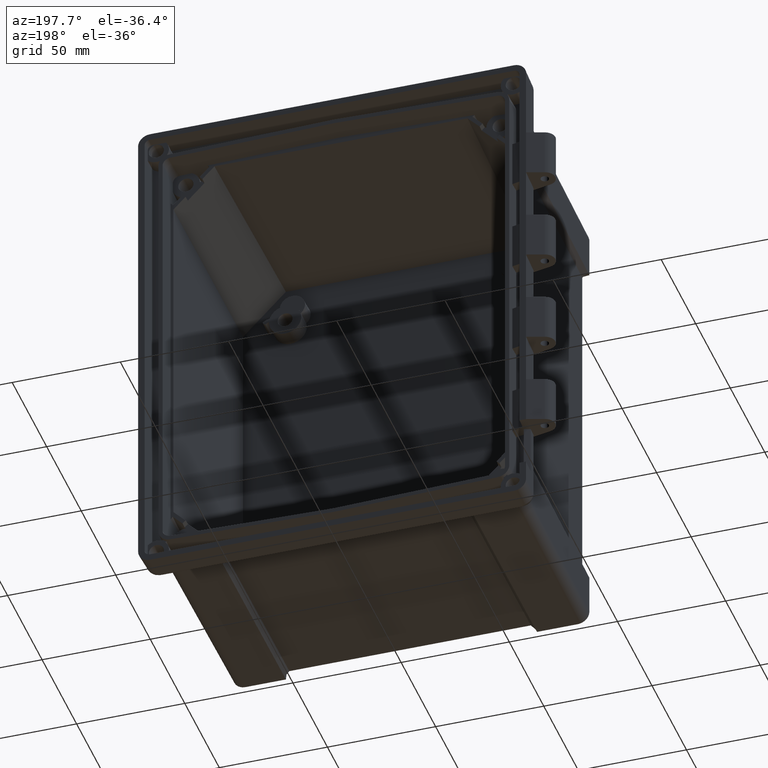
[diagram: clean part render]
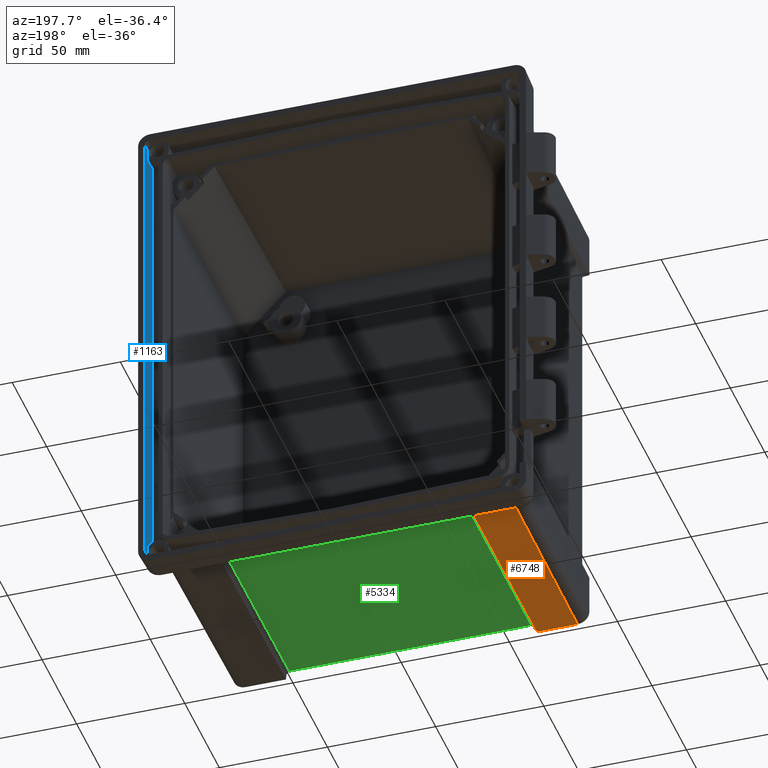
[diagram: same view with three faces highlighted in distinct colors, each labeled with its STEP entity id]
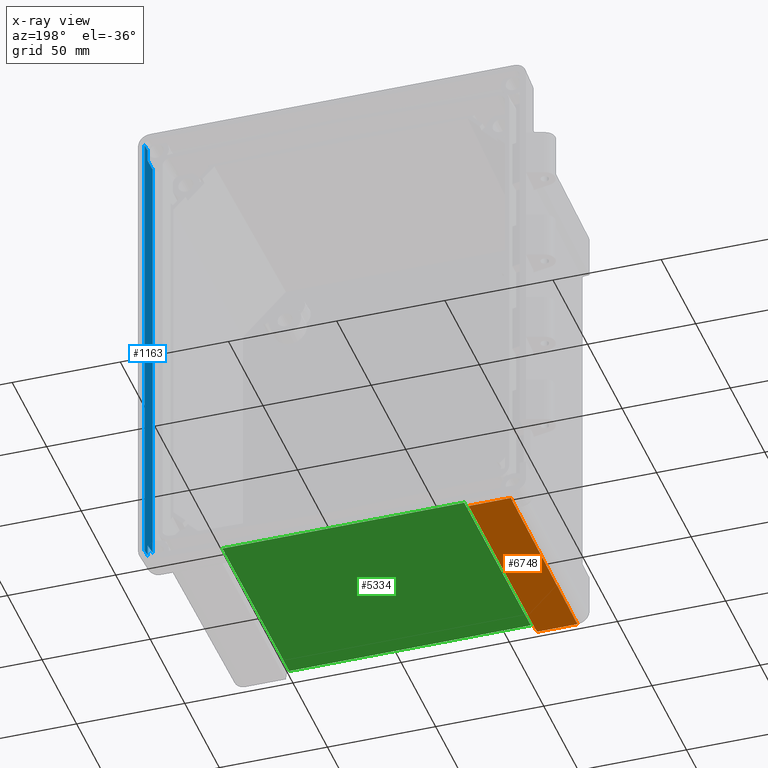
[diagram: x-ray of the same camera — body ghosted, the three highlighted faces saturated]
A machine part, auxiliary view with three faces highlighted in distinct colors.
The next image is the same camera in x-ray (body ghosted, the three faces saturated) — at least one of them is partly hidden behind the body in this view.
Their STEP definitions:

[orange] entity #6748 — the highlighted planar face has unit normal (0, -0.0087, -1).
#20 =( BOUNDED_CURVE ( )  B_SPLINE_CURVE ( 3, ( #15699, #1036, #7607, #13385 ),
 .UNSPECIFIED., .F., .F. ) 
 B_SPLINE_CURVE_WITH_KNOTS ( ( 4, 4 ),
 ( 1.823788115287226600, 1.877816546573069000 ),
 .UNSPECIFIED. ) 
 CURVE ( )  GEOMETRIC_REPRESENTATION_ITEM ( )  RATIONAL_B_SPLINE_CURVE ( ( 1.000000000000000000, 0.9997567588440701100, 0.9997567588440701100, 1.000000000000000000 ) ) 
 REPRESENTATION_ITEM ( '' )  );
#496 = ORIENTED_EDGE ( 'NONE', *, *, #1917, .T. ) ;
#757 = DIRECTION ( 'NONE',  ( -0.0009171954542809211400, 0.9999615024563481800, -0.008726531827785091400 ) ) ;
#941 = VERTEX_POINT ( 'NONE', #3738 ) ;
#1036 = CARTESIAN_POINT ( 'NONE',  ( -76.92441382525274200, -15.70021058996378500, -107.8462717140804200 ) ) ;
#1054 = ORIENTED_EDGE ( 'NONE', *, *, #12316, .T. ) ;
#1137 = DIRECTION ( 'NONE',  ( 0.007857165312980522700, 0.9999310562397356600, -0.008726266127677982700 ) ) ;
#1155 = PLANE ( 'NONE',  #1752 ) ;
#1752 = AXIS2_PLACEMENT_3D ( 'NONE', #10607, #6713, #16106 ) ;
#1773 = FACE_OUTER_BOUND ( 'NONE', #6966, .T. ) ;
#1917 = EDGE_CURVE ( 'NONE', #15261, #11117, #7010, .T. ) ;
#2273 = LINE ( 'NONE', #7884, #5867 ) ;
#2662 = LINE ( 'NONE', #8875, #6045 ) ;
#3738 = CARTESIAN_POINT ( 'NONE',  ( -58.10953762954192600, -15.71341567776966700, -107.8461564750249700 ) ) ;
#4180 = CARTESIAN_POINT ( 'NONE',  ( -76.72990500339598400, -115.0000000000000000, -106.9796955802488400 ) ) ;
#4183 = VERTEX_POINT ( 'NONE', #9734 ) ;
#4271 = CARTESIAN_POINT ( 'NONE',  ( -77.59858256765929200, -15.45941051344908800, -107.8483731445121800 ) ) ;
#4546 = CARTESIAN_POINT ( 'NONE',  ( -77.59671153124580200, -15.67381005041444400, -107.8465021080986800 ) ) ;
#5034 = CARTESIAN_POINT ( 'NONE',  ( -58.02030338133973000, -115.0000000000000000, -106.9796955802488400 ) ) ;
#5049 = EDGE_CURVE ( 'NONE', #4183, #941, #2662, .T. ) ;
#5235 = EDGE_CURVE ( 'NONE', #941, #12037, #12606, .T. ) ;
#5320 = VECTOR ( 'NONE', #6557, 1000.000000000000000 ) ;
#5867 = VECTOR ( 'NONE', #1137, 1000.000000000000000 ) ;
#6045 = VECTOR ( 'NONE', #757, 1000.000000000000100 ) ;
#6557 = DIRECTION ( 'NONE',  ( -1.000000000000000000, 0.0000000000000000000, 0.0000000000000000000 ) ) ;
#6713 = DIRECTION ( 'NONE',  ( 0.0000000000000000000, -0.008726535498373953800, -0.9999619230641713100 ) ) ;
#6748 = ADVANCED_FACE ( 'NONE', ( #1773 ), #1155, .T. ) ;
#6966 = EDGE_LOOP ( 'NONE', ( #10991, #496, #1054, #8385, #11332, #10983 ) ) ;
#7010 = LINE ( 'NONE', #4271, #11020 ) ;
#7607 = CARTESIAN_POINT ( 'NONE',  ( -76.25417917563802900, -15.71341567776968900, -107.8461564750249700 ) ) ;
#7884 = CARTESIAN_POINT ( 'NONE',  ( -58.02087404992340700, -113.0726253320256200, -106.9965155241595100 ) ) ;
#8385 = ORIENTED_EDGE ( 'NONE', *, *, #5235, .F. ) ;
#8570 = CARTESIAN_POINT ( 'NONE',  ( -75.58649666835444200, -15.71341567776968500, -107.8461564750249700 ) ) ;
#8875 = CARTESIAN_POINT ( 'NONE',  ( -57.98407541767958400, -152.4971091531860700, -106.6524632661333400 ) ) ;
#9222 = CARTESIAN_POINT ( 'NONE',  ( 89.64603423559731300, -15.71341567776968500, -107.8461564750249700 ) ) ;
#9642 = DIRECTION ( 'NONE',  ( -0.008726203243944226000, 0.9999238504775704900, -0.008726203243944238200 ) ) ;
#9734 = CARTESIAN_POINT ( 'NONE',  ( -58.02030338133973000, -113.0000000000000000, -106.9971493158303600 ) ) ;
#10607 = CARTESIAN_POINT ( 'NONE',  ( 89.64603423559731300, -14.00000000000000200, -107.8611092271154900 ) ) ;
#10983 = ORIENTED_EDGE ( 'NONE', *, *, #13812, .F. ) ;
#10991 = ORIENTED_EDGE ( 'NONE', *, *, #17192, .T. ) ;
#11020 = VECTOR ( 'NONE', #9642, 1000.000000000000100 ) ;
#11117 = VERTEX_POINT ( 'NONE', #4546 ) ;
#11332 = ORIENTED_EDGE ( 'NONE', *, *, #5049, .F. ) ;
#11939 = DIRECTION ( 'NONE',  ( -1.000000000000000000, 0.0000000000000000000, 0.0000000000000000000 ) ) ;
#12037 = VERTEX_POINT ( 'NONE', #8570 ) ;
#12201 = VERTEX_POINT ( 'NONE', #14093 ) ;
#12316 = EDGE_CURVE ( 'NONE', #11117, #12037, #20, .T. ) ;
#12606 = LINE ( 'NONE', #9222, #15122 ) ;
#13385 = CARTESIAN_POINT ( 'NONE',  ( -75.58649666835444200, -15.71341567776968500, -107.8461564750249700 ) ) ;
#13812 = EDGE_CURVE ( 'NONE', #12201, #4183, #2273, .T. ) ;
#14093 = CARTESIAN_POINT ( 'NONE',  ( -58.03601879544543600, -115.0000000000000000, -106.9796955802488400 ) ) ;
#14401 = LINE ( 'NONE', #5034, #5320 ) ;
#15122 = VECTOR ( 'NONE', #11939, 1000.000000000000000 ) ;
#15261 = VERTEX_POINT ( 'NONE', #4180 ) ;
#15699 = CARTESIAN_POINT ( 'NONE',  ( -77.59671153124580200, -15.67381005041444400, -107.8465021080986800 ) ) ;
#16106 = DIRECTION ( 'NONE',  ( 0.0000000000000000000, 0.9999619230641713100, -0.008726535498373953800 ) ) ;
#17192 = EDGE_CURVE ( 'NONE', #12201, #15261, #14401, .T. ) ;

[blue] entity #1163 — the highlighted planar face has unit normal (0.9994, -0.0349, 0).
#36 = CARTESIAN_POINT ( 'NONE',  ( 86.27673830405257100, -10.52288663728130500, -116.3960342355972400 ) ) ;
#284 = LINE ( 'NONE', #36, #8965 ) ;
#559 =( BOUNDED_CURVE ( )  B_SPLINE_CURVE ( 3, ( #5626, #2487, #14141, #6631 ),
 .UNSPECIFIED., .F., .F. ) 
 B_SPLINE_CURVE_WITH_KNOTS ( ( 4, 4 ),
 ( 2.607399891683452900, 2.651825839137166100 ),
 .UNSPECIFIED. ) 
 CURVE ( )  GEOMETRIC_REPRESENTATION_ITEM ( )  RATIONAL_B_SPLINE_CURVE ( ( 1.000000000000000000, 0.9998355346953906600, 0.9998355346953906600, 1.000000000000000000 ) ) 
 REPRESENTATION_ITEM ( '' )  );
#578 = LINE ( 'NONE', #2626, #16871 ) ;
#704 = VERTEX_POINT ( 'NONE', #9462 ) ;
#705 = CARTESIAN_POINT ( 'NONE',  ( 86.50452252473387200, -4.000000000000001800, 105.2354602418432700 ) ) ;
#854 =( BOUNDED_CURVE ( )  B_SPLINE_CURVE ( 3, ( #5810, #9959, #15269, #9838 ),
 .UNSPECIFIED., .F., .F. ) 
 B_SPLINE_CURVE_WITH_KNOTS ( ( 4, 4 ),
 ( 2.607399891683450200, 2.651825839137163400 ),
 .UNSPECIFIED. ) 
 CURVE ( )  GEOMETRIC_REPRESENTATION_ITEM ( )  RATIONAL_B_SPLINE_CURVE ( ( 1.000000000000000000, 0.9998355346953906600, 0.9998355346953906600, 1.000000000000000000 ) ) 
 REPRESENTATION_ITEM ( '' )  );
#856 = EDGE_CURVE ( 'NONE', #14554, #16792, #559, .T. ) ;
#1040 = AXIS2_PLACEMENT_3D ( 'NONE', #9564, #8216, #13758 ) ;
#1163 = ADVANCED_FACE ( 'NONE', ( #3012 ), #5595, .F. ) ;
#1277 = VERTEX_POINT ( 'NONE', #4498 ) ;
#1396 = ORIENTED_EDGE ( 'NONE', *, *, #856, .F. ) ;
#1615 = CARTESIAN_POINT ( 'NONE',  ( 86.50452252473387200, -4.000000000000000000, -116.3960342355972400 ) ) ;
#1774 = VERTEX_POINT ( 'NONE', #13180 ) ;
#2318 = CARTESIAN_POINT ( 'NONE',  ( 86.64420560270085000, 0.0000000000000000000, -116.3960342355972400 ) ) ;
#2487 = CARTESIAN_POINT ( 'NONE',  ( 86.35566163564361400, -8.262818123908962400, -104.9999438086036600 ) ) ;
#2626 = CARTESIAN_POINT ( 'NONE',  ( 86.43644080715682800, -5.949605308471403100, 110.6879637396090200 ) ) ;
#3012 = FACE_OUTER_BOUND ( 'NONE', #14295, .T. ) ;
#3241 = VECTOR ( 'NONE', #11959, 1000.000000000000000 ) ;
#3747 = EDGE_CURVE ( 'NONE', #16792, #704, #9077, .T. ) ;
#4014 = CARTESIAN_POINT ( 'NONE',  ( 86.64420560270086500, 0.0000000000000000000, -110.8957285351530400 ) ) ;
#4498 = CARTESIAN_POINT ( 'NONE',  ( 86.27673830405252900, -10.52288663728131000, 104.8843913741730100 ) ) ;
#4794 = CARTESIAN_POINT ( 'NONE',  ( 86.27673830405257100, -10.52288663728130500, -104.8843913741730300 ) ) ;
#4859 = ORIENTED_EDGE ( 'NONE', *, *, #3747, .F. ) ;
#4873 = LINE ( 'NONE', #1615, #13551 ) ;
#5451 = CARTESIAN_POINT ( 'NONE',  ( 86.50452252473387200, -4.000000000000000000, -105.2354602418433000 ) ) ;
#5595 = PLANE ( 'NONE',  #1040 ) ;
#5626 = CARTESIAN_POINT ( 'NONE',  ( 86.27673830405257100, -10.52288663728130500, -104.8843913741730300 ) ) ;
#5810 = CARTESIAN_POINT ( 'NONE',  ( 86.27673830405252900, -10.52288663728131000, 104.8843913741730100 ) ) ;
#6198 = ORIENTED_EDGE ( 'NONE', *, *, #8590, .F. ) ;
#6631 = CARTESIAN_POINT ( 'NONE',  ( 86.50452252473387200, -4.000000000000000000, -105.2354602418433000 ) ) ;
#6685 = CARTESIAN_POINT ( 'NONE',  ( 86.50452252473385800, -4.000000000000000000, 110.7560454571860300 ) ) ;
#7115 = DIRECTION ( 'NONE',  ( 0.0000000000000000000, -0.0000000000000000000, -1.000000000000000000 ) ) ;
#7880 = DIRECTION ( 'NONE',  ( 0.0000000000000000000, -0.0000000000000000000, -1.000000000000000000 ) ) ;
#7888 = CARTESIAN_POINT ( 'NONE',  ( 86.65454839140424800, 0.2961787169620384600, -110.9060713238564400 ) ) ;
#8017 = VERTEX_POINT ( 'NONE', #4014 ) ;
#8216 = DIRECTION ( 'NONE',  ( 0.9993908270190957600, -0.03489949670250105200, 0.0000000000000000000 ) ) ;
#8399 = ORIENTED_EDGE ( 'NONE', *, *, #11425, .F. ) ;
#8590 = EDGE_CURVE ( 'NONE', #1774, #15884, #578, .T. ) ;
#8965 = VECTOR ( 'NONE', #11254, 1000.000000000000000 ) ;
#9077 = LINE ( 'NONE', #17400, #16883 ) ;
#9191 = VECTOR ( 'NONE', #9374, 1000.000000000000100 ) ;
#9374 = DIRECTION ( 'NONE',  ( 0.03487826274237469700, 0.9987827659587182900, -0.03487826274237469700 ) ) ;
#9462 = CARTESIAN_POINT ( 'NONE',  ( 86.50452252473387200, -4.000000000000000000, -110.7560454571860500 ) ) ;
#9564 = CARTESIAN_POINT ( 'NONE',  ( 86.64786175454003100, 0.1046984901075031500, -116.3960342355972400 ) ) ;
#9838 = CARTESIAN_POINT ( 'NONE',  ( 86.50452252473387200, -4.000000000000001800, 105.2354602418432700 ) ) ;
#9959 = CARTESIAN_POINT ( 'NONE',  ( 86.35566163564360000, -8.262818123909395900, 104.9999438086036300 ) ) ;
#10858 = ORIENTED_EDGE ( 'NONE', *, *, #13488, .F. ) ;
#11057 = DIRECTION ( 'NONE',  ( -0.03487826274237469700, -0.9987827659587182900, -0.03487826274237469700 ) ) ;
#11213 = ORIENTED_EDGE ( 'NONE', *, *, #11673, .F. ) ;
#11254 = DIRECTION ( 'NONE',  ( 0.0000000000000000000, 0.0000000000000000000, -1.000000000000000000 ) ) ;
#11355 = EDGE_CURVE ( 'NONE', #704, #8017, #16586, .T. ) ;
#11425 = EDGE_CURVE ( 'NONE', #1277, #14554, #284, .T. ) ;
#11497 = EDGE_CURVE ( 'NONE', #1277, #11560, #854, .T. ) ;
#11560 = VERTEX_POINT ( 'NONE', #705 ) ;
#11673 = EDGE_CURVE ( 'NONE', #8017, #1774, #14648, .T. ) ;
#11959 = DIRECTION ( 'NONE',  ( -0.0000000000000000000, -0.0000000000000000000, 1.000000000000000000 ) ) ;
#13180 = CARTESIAN_POINT ( 'NONE',  ( 86.64420560270083600, 0.0000000000000000000, 110.8957285351530100 ) ) ;
#13488 = EDGE_CURVE ( 'NONE', #15884, #11560, #4873, .T. ) ;
#13551 = VECTOR ( 'NONE', #7115, 1000.000000000000000 ) ;
#13758 = DIRECTION ( 'NONE',  ( 0.03489949670250104600, 0.9993908270190956500, 0.0000000000000000000 ) ) ;
#14141 = CARTESIAN_POINT ( 'NONE',  ( 86.43160219879186500, -6.088164923147470400, -105.1169860138756900 ) ) ;
#14295 = EDGE_LOOP ( 'NONE', ( #10858, #6198, #11213, #17126, #4859, #1396, #8399, #17537 ) ) ;
#14554 = VERTEX_POINT ( 'NONE', #4794 ) ;
#14648 = LINE ( 'NONE', #2318, #3241 ) ;
#15269 = CARTESIAN_POINT ( 'NONE',  ( 86.43160219879185000, -6.088164923147870100, 105.1169860138756700 ) ) ;
#15884 = VERTEX_POINT ( 'NONE', #6685 ) ;
#16586 = LINE ( 'NONE', #7888, #9191 ) ;
#16792 = VERTEX_POINT ( 'NONE', #5451 ) ;
#16871 = VECTOR ( 'NONE', #11057, 1000.000000000000100 ) ;
#16883 = VECTOR ( 'NONE', #7880, 1000.000000000000000 ) ;
#17126 = ORIENTED_EDGE ( 'NONE', *, *, #11355, .F. ) ;
#17400 = CARTESIAN_POINT ( 'NONE',  ( 86.50452252473387200, -4.000000000000000000, -116.3960342355972400 ) ) ;
#17537 = ORIENTED_EDGE ( 'NONE', *, *, #11497, .T. ) ;

[green] entity #5334 — the highlighted planar face has unit normal (0, -0.0087, -1).
#999 = VERTEX_POINT ( 'NONE', #1175 ) ;
#1170 = CARTESIAN_POINT ( 'NONE',  ( -55.89008262439888600, -16.25677677850017100, -105.1816976042096600 ) ) ;
#1175 = CARTESIAN_POINT ( 'NONE',  ( -55.89006150072587100, -16.27980661332283000, -105.1814966258859100 ) ) ;
#2014 = VECTOR ( 'NONE', #10622, 1000.000000000000100 ) ;
#2389 = VECTOR ( 'NONE', #15921, 1000.000000000000000 ) ;
#2895 = CARTESIAN_POINT ( 'NONE',  ( 55.89006150072589200, -16.27980661332283700, -105.1814966258859100 ) ) ;
#4081 = DIRECTION ( 'NONE',  ( 0.0000000000000000000, -0.008726535498377263600, -0.9999619230641713100 ) ) ;
#4096 = LINE ( 'NONE', #14611, #2389 ) ;
#4270 = CARTESIAN_POINT ( 'NONE',  ( 55.80134676371476100, -113.0000000000000000, -104.3374322855034400 ) ) ;
#4609 = EDGE_CURVE ( 'NONE', #6947, #9414, #7120, .T. ) ;
#5183 = DIRECTION ( 'NONE',  ( 0.0009171954542837740000, 0.9999615024563481800, -0.008726531827788397800 ) ) ;
#5334 = ADVANCED_FACE ( 'NONE', ( #7507 ), #10919, .T. ) ;
#5765 = EDGE_CURVE ( 'NONE', #9414, #13029, #6660, .T. ) ;
#6452 = CARTESIAN_POINT ( 'NONE',  ( -81.00000000000001400, -113.0000000000000000, -104.3374322855034400 ) ) ;
#6660 = LINE ( 'NONE', #10669, #17466 ) ;
#6947 = VERTEX_POINT ( 'NONE', #16590 ) ;
#7120 = LINE ( 'NONE', #6452, #7537 ) ;
#7377 = AXIS2_PLACEMENT_3D ( 'NONE', #12182, #4081, #8045 ) ;
#7507 = FACE_OUTER_BOUND ( 'NONE', #8794, .T. ) ;
#7537 = VECTOR ( 'NONE', #17103, 1000.000000000000000 ) ;
#8045 = DIRECTION ( 'NONE',  ( 0.0000000000000000000, 0.9999619230641712000, -0.008726535498377261900 ) ) ;
#8794 = EDGE_LOOP ( 'NONE', ( #11006, #12057, #15514, #12248 ) ) ;
#9414 = VERTEX_POINT ( 'NONE', #4270 ) ;
#10061 = LINE ( 'NONE', #1170, #2014 ) ;
#10622 = DIRECTION ( 'NONE',  ( 0.0009171954542832974900, -0.9999615024563481800, 0.008726531827788399500 ) ) ;
#10669 = CARTESIAN_POINT ( 'NONE',  ( 55.88994634230370900, -16.40535672191106200, -105.1804009666871500 ) ) ;
#10919 = PLANE ( 'NONE',  #7377 ) ;
#11006 = ORIENTED_EDGE ( 'NONE', *, *, #14789, .F. ) ;
#12057 = ORIENTED_EDGE ( 'NONE', *, *, #16732, .T. ) ;
#12182 = CARTESIAN_POINT ( 'NONE',  ( -81.00000000000001400, -16.27980661332283300, -105.1814966258859100 ) ) ;
#12248 = ORIENTED_EDGE ( 'NONE', *, *, #4609, .F. ) ;
#13029 = VERTEX_POINT ( 'NONE', #2895 ) ;
#14611 = CARTESIAN_POINT ( 'NONE',  ( -81.00000000000001400, -16.27980661332283300, -105.1814966258859100 ) ) ;
#14789 = EDGE_CURVE ( 'NONE', #999, #6947, #10061, .T. ) ;
#15514 = ORIENTED_EDGE ( 'NONE', *, *, #5765, .F. ) ;
#15921 = DIRECTION ( 'NONE',  ( 1.000000000000000000, -0.0000000000000000000, -0.0000000000000000000 ) ) ;
#16590 = CARTESIAN_POINT ( 'NONE',  ( -55.80134676371475400, -113.0000000000000000, -104.3374322855034400 ) ) ;
#16732 = EDGE_CURVE ( 'NONE', #999, #13029, #4096, .T. ) ;
#17103 = DIRECTION ( 'NONE',  ( 1.000000000000000000, 0.0000000000000000000, 0.0000000000000000000 ) ) ;
#17466 = VECTOR ( 'NONE', #5183, 1000.000000000000100 ) ;